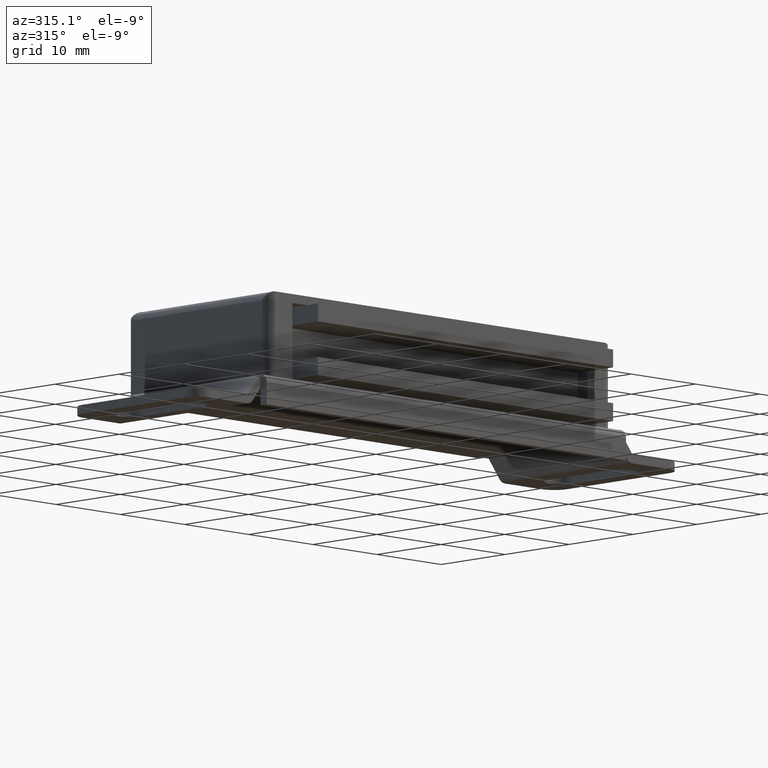
[diagram: clean part render]
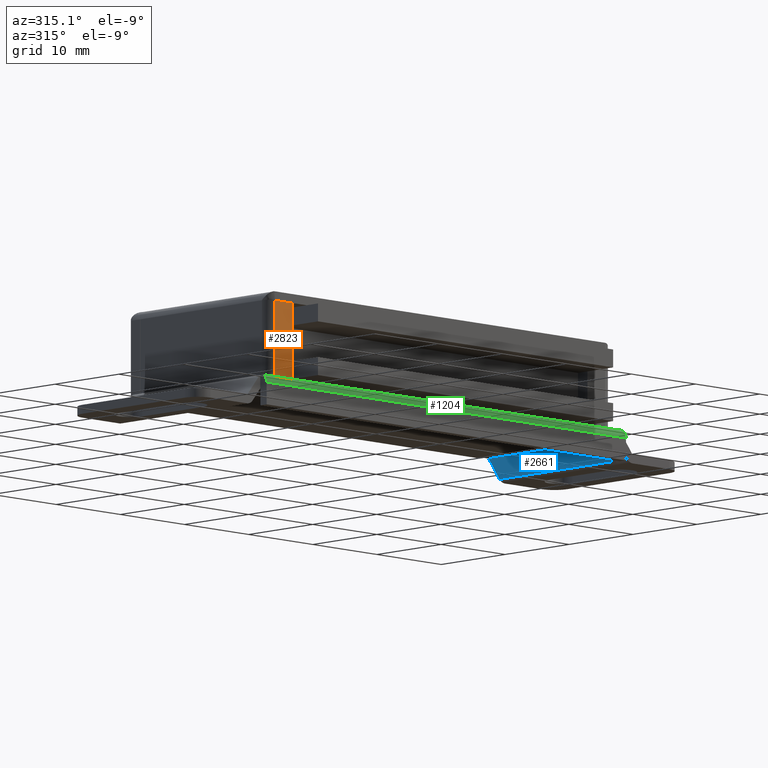
[diagram: same view with three faces highlighted in distinct colors, each labeled with its STEP entity id]
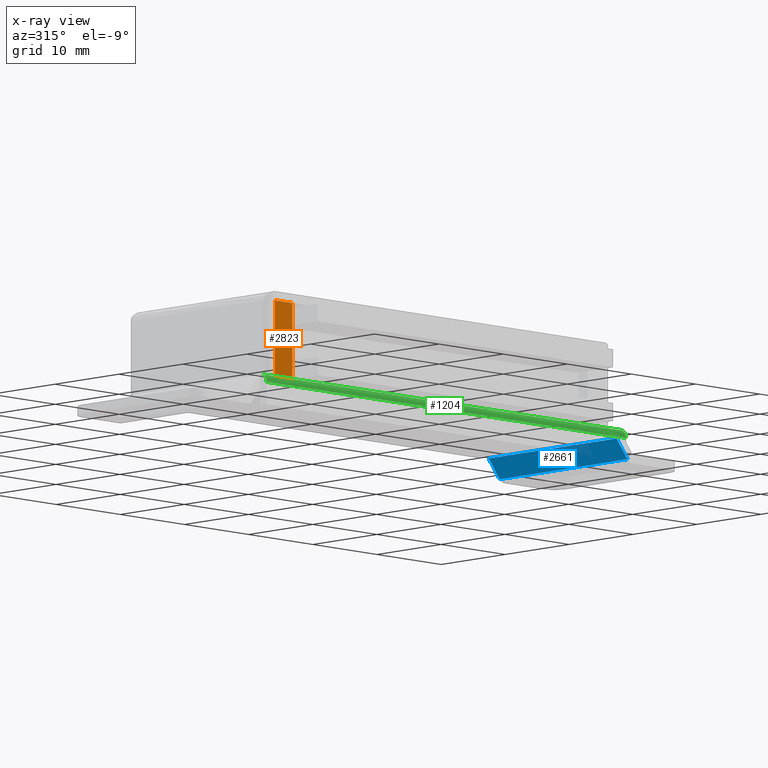
[diagram: x-ray of the same camera — body ghosted, the three highlighted faces saturated]
A machine part, auxiliary view with three faces highlighted in distinct colors.
The next image is the same camera in x-ray (body ghosted, the three faces saturated) — at least one of them is partly hidden behind the body in this view.
Their STEP definitions:

[orange] entity #2823 — the highlighted face is a freeform B-spline surface patch.
#1031=CARTESIAN_POINT('',(-25.750012999999999,-20.0,3.500000000000100));
#1032=VERTEX_POINT('',#1031);
#1044=CARTESIAN_POINT('',(-25.750013191986199,-20.0,11.989984000000099));
#1045=VERTEX_POINT('',#1044);
#1046=CARTESIAN_POINT('',(-25.750013191986199,-20.0,11.989984000000099));
#1047=CARTESIAN_POINT('',(-25.750012999999999,-20.0,3.500000000000100));
#1048=QUASI_UNIFORM_CURVE('',1,(#1046,#1047),.UNSPECIFIED.,.F.,.U.);
#1049=EDGE_CURVE('',#1045,#1032,#1048,.T.);
#1123=CARTESIAN_POINT('',(-22.999991000000001,-20.0,3.500000000000100));
#1124=VERTEX_POINT('',#1123);
#1125=CARTESIAN_POINT('',(-22.999991000000001,-20.0,3.500000000000100));
#1126=CARTESIAN_POINT('',(-25.750012999999999,-20.0,3.500000000000100));
#1127=QUASI_UNIFORM_CURVE('',1,(#1125,#1126),.UNSPECIFIED.,.F.,.U.);
#1128=EDGE_CURVE('',#1124,#1032,#1127,.T.);
#2187=CARTESIAN_POINT('',(-22.999991000000001,-20.0,11.989984000000099));
#2188=VERTEX_POINT('',#2187);
#2189=CARTESIAN_POINT('',(-22.999991000000001,-20.0,11.989984000000099));
#2190=CARTESIAN_POINT('',(-22.999991000000001,-20.0,3.500000000000100));
#2191=QUASI_UNIFORM_CURVE('',1,(#2189,#2190),.UNSPECIFIED.,.F.,.U.);
#2192=EDGE_CURVE('',#2188,#1124,#2191,.T.);
#2218=CARTESIAN_POINT('',(-25.750013191986199,-20.0,11.989984000000099));
#2219=CARTESIAN_POINT('',(-22.999991000000001,-20.0,11.989984000000099));
#2220=QUASI_UNIFORM_CURVE('',1,(#2218,#2219),.UNSPECIFIED.,.F.,.U.);
#2221=EDGE_CURVE('',#1045,#2188,#2220,.T.);
#2812=CARTESIAN_POINT('',(-25.887376995502539,-20.0,12.414058285855390));
#2813=CARTESIAN_POINT('',(-22.862626901438290,-20.0,12.414058285855390));
#2814=CARTESIAN_POINT('',(-25.887376995502539,-20.0,3.075925106893837));
#2815=CARTESIAN_POINT('',(-22.862626901438290,-20.0,3.075925106893837));
#2816=B_SPLINE_SURFACE_WITH_KNOTS('',1,1,((#2812,#2814),(#2813,#2815)),.UNSPECIFIED.,.F.,.F.,.U.,(2,2),(2,2),(0.0,3.024750094064252),(0.0,9.338133178961552),.UNSPECIFIED.);
#2817=ORIENTED_EDGE('',*,*,#2221,.F.);
#2818=ORIENTED_EDGE('',*,*,#1049,.T.);
#2819=ORIENTED_EDGE('',*,*,#1128,.F.);
#2820=ORIENTED_EDGE('',*,*,#2192,.F.);
#2821=EDGE_LOOP('',(#2817,#2818,#2819,#2820));
#2822=FACE_OUTER_BOUND('',#2821,.T.);
#2823=ADVANCED_FACE('',(#2822),#2816,.F.);

[blue] entity #2661 — the highlighted face is a freeform B-spline surface patch.
#1674=CARTESIAN_POINT('',(29.219119638179698,3.469447E-015,0.375305702307860));
#1675=VERTEX_POINT('',#1674);
#1692=CARTESIAN_POINT('',(29.219119638179698,-20.0,0.375305702307860));
#1693=VERTEX_POINT('',#1692);
#1703=CARTESIAN_POINT('',(29.219119638179698,3.469447E-015,0.375305702307860));
#1704=CARTESIAN_POINT('',(29.219119638179698,-20.0,0.375305702307860));
#1705=QUASI_UNIFORM_CURVE('',1,(#1703,#1704),.UNSPECIFIED.,.F.,.U.);
#1706=EDGE_CURVE('',#1675,#1693,#1705,.T.);
#1935=CARTESIAN_POINT('',(27.999993000000000,-20.0,1.899216999999545));
#1936=VERTEX_POINT('',#1935);
#1995=CARTESIAN_POINT('',(27.519367546159199,-20.0,2.500000000000100));
#1996=VERTEX_POINT('',#1995);
#2002=CARTESIAN_POINT('',(27.519367546159199,-20.0,2.500000000000100));
#2003=CARTESIAN_POINT('',(27.999993000000000,-20.0,1.899216999999545));
#2004=QUASI_UNIFORM_CURVE('',1,(#2002,#2003),.UNSPECIFIED.,.F.,.U.);
#2005=EDGE_CURVE('',#1996,#1936,#2004,.T.);
#2345=CARTESIAN_POINT('',(27.999993000000000,-20.0,1.899216999999545));
#2346=CARTESIAN_POINT('',(29.219119638179698,-20.0,0.375305702307860));
#2347=QUASI_UNIFORM_CURVE('',1,(#2345,#2346),.UNSPECIFIED.,.F.,.U.);
#2348=EDGE_CURVE('',#1936,#1693,#2347,.T.);
#2373=CARTESIAN_POINT('',(27.519367546159199,0.0,2.500000000000100));
#2374=VERTEX_POINT('',#2373);
#2375=CARTESIAN_POINT('',(27.519367546159199,0.0,2.500000000000100));
#2376=CARTESIAN_POINT('',(29.219119638179698,3.469447E-015,0.375305702307860));
#2377=QUASI_UNIFORM_CURVE('',1,(#2375,#2376),.UNSPECIFIED.,.F.,.U.);
#2378=EDGE_CURVE('',#2374,#1675,#2377,.T.);
#2419=CARTESIAN_POINT('',(27.519367546159199,0.0,2.500000000000100));
#2420=CARTESIAN_POINT('',(27.519367546159199,-20.0,2.500000000000100));
#2421=QUASI_UNIFORM_CURVE('',1,(#2419,#2420),.UNSPECIFIED.,.F.,.U.);
#2422=EDGE_CURVE('',#2374,#1996,#2421,.T.);
#2649=CARTESIAN_POINT('',(29.304022417514961,-20.998999961236120,0.269177019214213));
#2650=CARTESIAN_POINT('',(27.434464751626980,-20.998999961236120,2.606128702090005));
#2651=CARTESIAN_POINT('',(29.304022417514961,0.999000497677926,0.269177019214213));
#2652=CARTESIAN_POINT('',(27.434464751626980,0.999000497677926,2.606128702090005));
#2653=B_SPLINE_SURFACE_WITH_KNOTS('',1,1,((#2649,#2651),(#2650,#2652)),.UNSPECIFIED.,.F.,.F.,.U.,(2,2),(2,2),(0.0,2.992756093332115),(0.0,21.998000458914049),.UNSPECIFIED.);
#2654=ORIENTED_EDGE('',*,*,#2378,.T.);
#2655=ORIENTED_EDGE('',*,*,#1706,.T.);
#2656=ORIENTED_EDGE('',*,*,#2348,.F.);
#2657=ORIENTED_EDGE('',*,*,#2005,.F.);
#2658=ORIENTED_EDGE('',*,*,#2422,.F.);
#2659=EDGE_LOOP('',(#2654,#2655,#2656,#2657,#2658));
#2660=FACE_OUTER_BOUND('',#2659,.T.);
#2661=ADVANCED_FACE('',(#2660),#2653,.T.);

[green] entity #1204 — the highlighted face is a freeform B-spline surface patch.
#893=CARTESIAN_POINT('',(25.750012999999999,-20.0,3.500000000000100));
#894=VERTEX_POINT('',#893);
#1031=CARTESIAN_POINT('',(-25.750012999999999,-20.0,3.500000000000100));
#1032=VERTEX_POINT('',#1031);
#1109=CARTESIAN_POINT('',(-29.399992650000002,-20.999048221581859,2.456380612634764));
#1110=CARTESIAN_POINT('',(29.434992641250009,-20.999048221581859,2.456380612634764));
#1111=CARTESIAN_POINT('',(-29.399992649999991,-21.047934490935976,3.576060264459138));
#1112=CARTESIAN_POINT('',(29.434992641250005,-21.047934490935976,3.576060264459138));
#1113=CARTESIAN_POINT('',(-29.399992650000005,-19.929941907956479,3.497542913232018));
#1114=CARTESIAN_POINT('',(29.434992641250005,-19.929941907956479,3.497542913232018));
#1122=(BOUNDED_SURFACE()B_SPLINE_SURFACE(1,2,((#1109,#1111,#1113),(#1110,#1112,#1114)),.UNSPECIFIED.,.F.,.F.,.U.)B_SPLINE_SURFACE_WITH_KNOTS((2,2),(3,3),(0.0,58.834985291250007),(0.0,0.994386594966985),.UNSPECIFIED.)GEOMETRIC_REPRESENTATION_ITEM()RATIONAL_B_SPLINE_SURFACE(((1.0,0.664513898535122,0.996233561259061),(1.0,0.664513898535122,0.996233561259061)))REPRESENTATION_ITEM('')SURFACE());
#1123=CARTESIAN_POINT('',(-22.999991000000001,-20.0,3.500000000000100));
#1124=VERTEX_POINT('',#1123);
#1125=CARTESIAN_POINT('',(-22.999991000000001,-20.0,3.500000000000100));
#1126=CARTESIAN_POINT('',(-25.750012999999999,-20.0,3.500000000000100));
#1127=QUASI_UNIFORM_CURVE('',1,(#1125,#1126),.UNSPECIFIED.,.F.,.U.);
#1128=EDGE_CURVE('',#1124,#1032,#1127,.T.);
#1129=ORIENTED_EDGE('',*,*,#1128,.T.);
#1130=CARTESIAN_POINT('',(-27.519349352514599,-20.0,3.500000000000100));
#1131=VERTEX_POINT('',#1130);
#1132=CARTESIAN_POINT('',(-27.519349352514599,-20.0,3.500000000000100));
#1133=CARTESIAN_POINT('',(-25.750012999999999,-20.0,3.500000000000100));
#1134=QUASI_UNIFORM_CURVE('',1,(#1132,#1133),.UNSPECIFIED.,.F.,.U.);
#1135=EDGE_CURVE('',#1131,#1032,#1134,.T.);
#1136=ORIENTED_EDGE('',*,*,#1135,.F.);
#1137=CARTESIAN_POINT('',(-27.999993000000000,-20.480643647485401,3.376916007455725));
#1138=VERTEX_POINT('',#1137);
#1139=CARTESIAN_POINT('',(-27.999993000000000,-20.480643647485401,3.376916007455725));
#1140=CARTESIAN_POINT('',(-27.846845222491300,-20.327495869976762,3.458832398658322));
#1141=CARTESIAN_POINT('',(-27.683079383939759,-20.163730031425239,3.500726472953480));
#1142=CARTESIAN_POINT('',(-27.519349352514599,-20.0,3.500000000000100));
#1143=B_SPLINE_CURVE_WITH_KNOTS('',3,(#1139,#1140,#1141,#1142),.UNSPECIFIED.,.F.,.U.,(4,4),(6.989761E-009,0.694624593662193),.UNSPECIFIED.);
#1144=EDGE_CURVE('',#1138,#1131,#1143,.T.);
#1145=ORIENTED_EDGE('',*,*,#1144,.F.);
#1146=CARTESIAN_POINT('',(-27.999993000000000,-21.0,2.500000000000100));
#1147=VERTEX_POINT('',#1146);
#1148=CARTESIAN_POINT('',(-27.999993000000000,-21.0,2.500000000000100));
#1149=CARTESIAN_POINT('',(-27.999992999999989,-21.000028722899081,2.589121283711832));
#1150=CARTESIAN_POINT('',(-27.999993000000000,-20.977508692915571,2.756195566647518));
#1151=CARTESIAN_POINT('',(-27.999993000000011,-20.876622149273761,3.005778103300417));
#1152=CARTESIAN_POINT('',(-27.999992999999989,-20.712612687035481,3.220730755739757));
#1153=CARTESIAN_POINT('',(-27.999993000000021,-20.558805350586571,3.334104057920198));
#1154=CARTESIAN_POINT('',(-27.999993000000000,-20.480643647485401,3.376916007455725));
#1155=B_SPLINE_CURVE_WITH_KNOTS('',3,(#1148,#1149,#1150,#1151,#1152,#1153,#1154),.UNSPECIFIED.,.F.,.U.,(4,1,1,1,4),(0.000000049289925,0.267364415602933,0.501312143661757,0.802093148228907,1.069457514541917),.UNSPECIFIED.);
#1156=EDGE_CURVE('',#1147,#1138,#1155,.T.);
#1157=ORIENTED_EDGE('',*,*,#1156,.F.);
#1158=CARTESIAN_POINT('',(27.999993000000000,-21.0,2.500000000000100));
#1159=VERTEX_POINT('',#1158);
#1160=CARTESIAN_POINT('',(27.999993000000000,-21.0,2.500000000000100));
#1161=CARTESIAN_POINT('',(-27.999993000000000,-21.0,2.500000000000100));
#1162=QUASI_UNIFORM_CURVE('',1,(#1160,#1161),.UNSPECIFIED.,.F.,.U.);
#1163=EDGE_CURVE('',#1159,#1147,#1162,.T.);
#1164=ORIENTED_EDGE('',*,*,#1163,.F.);
#1165=CARTESIAN_POINT('',(27.999993000000000,-20.480625647485802,3.376925873138104));
#1166=VERTEX_POINT('',#1165);
#1167=CARTESIAN_POINT('',(27.999993000000000,-20.480625647485802,3.376925873138104));
#1168=CARTESIAN_POINT('',(27.999992999999971,-20.607753774892799,3.307477827187585));
#1169=CARTESIAN_POINT('',(27.999993000000060,-20.787758046533281,3.149584840283399));
#1170=CARTESIAN_POINT('',(27.999992999999940,-20.960586184461931,2.834130401027843));
#1171=CARTESIAN_POINT('',(27.999993000000021,-21.000102573080191,2.622551957742744));
#1172=CARTESIAN_POINT('',(27.999993000000000,-21.0,2.500000000000100));
#1173=B_SPLINE_CURVE_WITH_KNOTS('',3,(#1167,#1168,#1169,#1170,#1171,#1172),.UNSPECIFIED.,.F.,.U.,(4,1,1,4),(0.000000049295295,0.434483405046435,0.701837891876044,1.069478043770766),.UNSPECIFIED.);
#1174=EDGE_CURVE('',#1166,#1159,#1173,.T.);
#1175=ORIENTED_EDGE('',*,*,#1174,.F.);
#1176=CARTESIAN_POINT('',(27.519367352514202,-20.0,3.500000000000100));
#1177=VERTEX_POINT('',#1176);
#1178=CARTESIAN_POINT('',(27.519367352514202,-20.0,3.500000000000100));
#1179=CARTESIAN_POINT('',(27.683127116551489,-20.163759764037369,3.501533196450758));
#1180=CARTESIAN_POINT('',(27.847004990900221,-20.327637638386101,3.459525627527766));
#1181=CARTESIAN_POINT('',(27.999993000000000,-20.480625647485802,3.376925873138104));
#1182=B_SPLINE_CURVE_WITH_KNOTS('',3,(#1178,#1179,#1180,#1181),.UNSPECIFIED.,.F.,.U.,(4,4),(3.654899E-009,0.694737534675604),.UNSPECIFIED.);
#1183=EDGE_CURVE('',#1177,#1166,#1182,.T.);
#1184=ORIENTED_EDGE('',*,*,#1183,.F.);
#1185=CARTESIAN_POINT('',(25.750012999999999,-20.0,3.500000000000100));
#1186=CARTESIAN_POINT('',(27.519367352514202,-20.0,3.500000000000100));
#1187=QUASI_UNIFORM_CURVE('',1,(#1185,#1186),.UNSPECIFIED.,.F.,.U.);
#1188=EDGE_CURVE('',#894,#1177,#1187,.T.);
#1189=ORIENTED_EDGE('',*,*,#1188,.F.);
#1190=CARTESIAN_POINT('',(23.000008999999650,-20.0,3.500000000000100));
#1191=VERTEX_POINT('',#1190);
#1192=CARTESIAN_POINT('',(25.750012999999999,-20.0,3.500000000000100));
#1193=CARTESIAN_POINT('',(23.000008999999650,-20.0,3.500000000000100));
#1194=QUASI_UNIFORM_CURVE('',1,(#1192,#1193),.UNSPECIFIED.,.F.,.U.);
#1195=EDGE_CURVE('',#894,#1191,#1194,.T.);
#1196=ORIENTED_EDGE('',*,*,#1195,.T.);
#1197=CARTESIAN_POINT('',(-22.999991000000001,-20.0,3.500000000000100));
#1198=CARTESIAN_POINT('',(23.000008999999650,-20.0,3.500000000000100));
#1199=QUASI_UNIFORM_CURVE('',1,(#1197,#1198),.UNSPECIFIED.,.F.,.U.);
#1200=EDGE_CURVE('',#1124,#1191,#1199,.T.);
#1201=ORIENTED_EDGE('',*,*,#1200,.F.);
#1202=EDGE_LOOP('',(#1129,#1136,#1145,#1157,#1164,#1175,#1184,#1189,#1196,#1201));
#1203=FACE_OUTER_BOUND('',#1202,.T.);
#1204=ADVANCED_FACE('',(#1203),#1122,.T.);